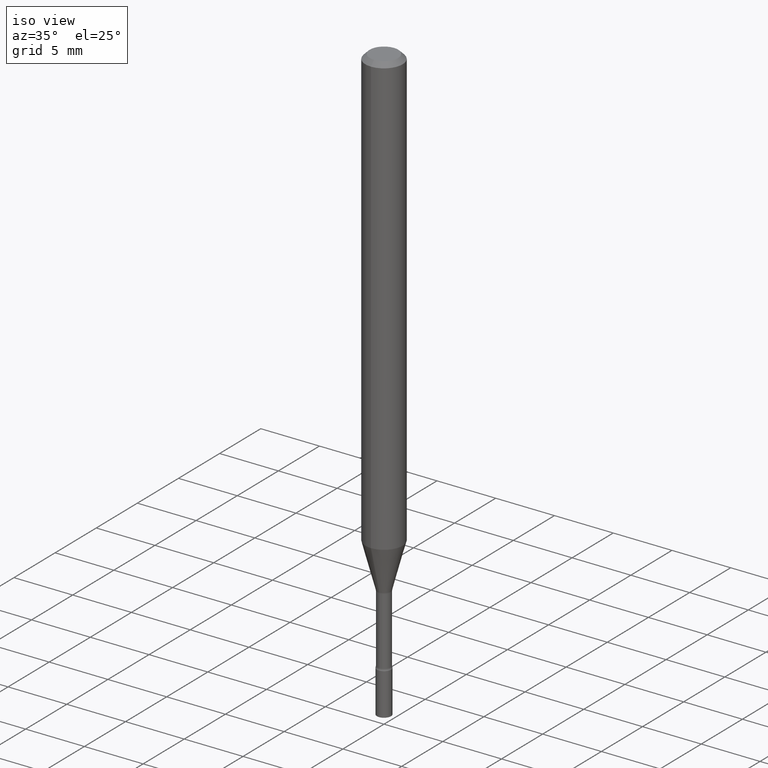
[diagram: clean part render]
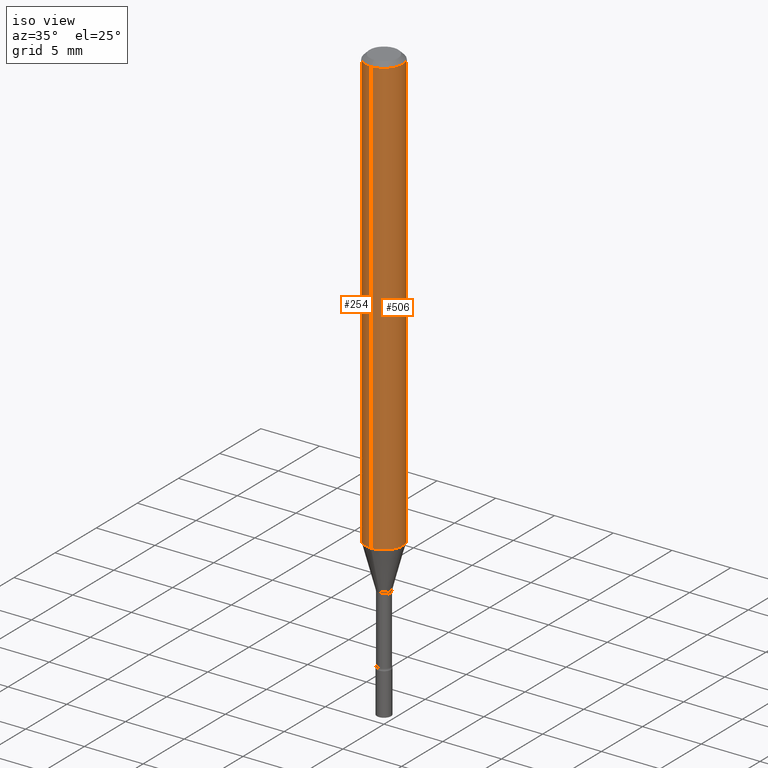
[diagram: same view with one multi-face feature highlighted, each face labeled with its STEP entity id]
A machine part, iso view. The highlighted faces form ONE feature: a constant-radius fillet chain: 2 tangent blend faces with common blend radius 1.5875 mm. The faces share edges in the B-rep.
Their STEP definitions:
[1] entity #506 (Cylinder):
#6 = EDGE_CURVE ( 'NONE', #166, #144, #128, .T. ) ;
#20 = VERTEX_POINT ( 'NONE', #354 ) ;
#25 = VECTOR ( 'NONE', #258, 39.37007874015748143 ) ;
#28 = CARTESIAN_POINT ( 'NONE',  ( 4.440892098500988052E-16, 0.06249999999999993755, -0.01500000000000024751 ) ) ;
#31 = CARTESIAN_POINT ( 'NONE',  ( 4.440892098500625669E-16, 0.06250000000000000000, -2.182194243372866596E-16 ) ) ;
#42 = ORIENTED_EDGE ( 'NONE', *, *, #89, .F. ) ;
#45 = VECTOR ( 'NONE', #459, 39.37007874015748143 ) ;
#75 = EDGE_LOOP ( 'NONE', ( #164, #395, #432, #42 ) ) ;
#89 = EDGE_CURVE ( 'NONE', #179, #20, #109, .T. ) ;
#106 = CIRCLE ( 'NONE', #403, 0.06250000000000000000 ) ;
#109 = LINE ( 'NONE', #379, #45 ) ;
#110 = CARTESIAN_POINT ( 'NONE',  ( 3.602695845204330567E-29, -5.143781497267456685E-15, -1.473225147374217503 ) ) ;
#115 = CIRCLE ( 'NONE', #470, 0.06250000000000000000 ) ;
#128 = LINE ( 'NONE', #31, #25 ) ;
#135 = CARTESIAN_POINT ( 'NONE',  ( 3.668172361460384639E-31, -5.237266184094891392E-17, -0.01500000000000003067 ) ) ;
#138 = CARTESIAN_POINT ( 'NONE',  ( 0.000000000000000000, 0.000000000000000000, 0.000000000000000000 ) ) ;
#142 = DIRECTION ( 'NONE',  ( -2.445448240973584878E-29, 3.491510789396586553E-15, 1.000000000000000000 ) ) ;
#144 = VERTEX_POINT ( 'NONE', #28 ) ;
#164 = ORIENTED_EDGE ( 'NONE', *, *, #198, .T. ) ;
#166 = VERTEX_POINT ( 'NONE', #410 ) ;
#179 = VERTEX_POINT ( 'NONE', #193 ) ;
#189 = DIRECTION ( 'NONE',  ( -6.982962677686265922E-15, -1.000000000000000000, 4.370956789862821150E-15 ) ) ;
#193 = CARTESIAN_POINT ( 'NONE',  ( -4.364351673553557762E-16, -0.06250000000000517641, -1.473225147374217281 ) ) ;
#198 = EDGE_CURVE ( 'NONE', #179, #166, #106, .T. ) ;
#206 = DIRECTION ( 'NONE',  ( -2.445448240973584878E-29, 3.491510789396586553E-15, 1.000000000000000000 ) ) ;
#217 = DIRECTION ( 'NONE',  ( -6.982962677686265922E-15, -1.000000000000000000, 3.491510789396586553E-15 ) ) ;
#258 = DIRECTION ( 'NONE',  ( -2.445448240973584878E-29, 3.491510789396586948E-15, 1.000000000000000000 ) ) ;
#266 = CYLINDRICAL_SURFACE ( 'NONE', #405, 0.06250000000000000000 ) ;
#293 = FACE_OUTER_BOUND ( 'NONE', #75, .T. ) ;
#354 = CARTESIAN_POINT ( 'NONE',  ( -4.364351673553912750E-16, -0.06250000000000005551, -0.01499999999999981209 ) ) ;
#367 = EDGE_CURVE ( 'NONE', #20, #144, #115, .T. ) ;
#379 = CARTESIAN_POINT ( 'NONE',  ( -4.364351673553916201E-16, -0.06250000000000000000, 2.182194243372866596E-16 ) ) ;
#388 = DIRECTION ( 'NONE',  ( -6.982962677686265922E-15, -1.000000000000000000, 3.483106191921935554E-15 ) ) ;
#395 = ORIENTED_EDGE ( 'NONE', *, *, #6, .T. ) ;
#403 = AXIS2_PLACEMENT_3D ( 'NONE', #110, #206, #189 ) ;
#405 = AXIS2_PLACEMENT_3D ( 'NONE', #138, #142, #217 ) ;
#410 = CARTESIAN_POINT ( 'NONE',  ( 4.440892098500984107E-16, 0.06249999999999483746, -1.473225147374217725 ) ) ;
#432 = ORIENTED_EDGE ( 'NONE', *, *, #367, .F. ) ;
#459 = DIRECTION ( 'NONE',  ( -2.445448240973584878E-29, 3.491510789396586948E-15, 1.000000000000000000 ) ) ;
#470 = AXIS2_PLACEMENT_3D ( 'NONE', #135, #498, #388 ) ;
#498 = DIRECTION ( 'NONE',  ( -2.445448240973584878E-29, 3.491510789396586553E-15, 1.000000000000000000 ) ) ;
#506 = ADVANCED_FACE ( 'NONE', ( #293 ), #266, .T. ) ;
[2] entity #254 (Cylinder):
#2 = AXIS2_PLACEMENT_3D ( 'NONE', #41, #248, #3 ) ;
#3 = DIRECTION ( 'NONE',  ( -6.982962677686265922E-15, -1.000000000000000000, 3.491510789396586553E-15 ) ) ;
#6 = EDGE_CURVE ( 'NONE', #166, #144, #128, .T. ) ;
#20 = VERTEX_POINT ( 'NONE', #354 ) ;
#25 = VECTOR ( 'NONE', #258, 39.37007874015748143 ) ;
#28 = CARTESIAN_POINT ( 'NONE',  ( 4.440892098500988052E-16, 0.06249999999999993755, -0.01500000000000024751 ) ) ;
#31 = CARTESIAN_POINT ( 'NONE',  ( 4.440892098500625669E-16, 0.06250000000000000000, -2.182194243372866596E-16 ) ) ;
#41 = CARTESIAN_POINT ( 'NONE',  ( 0.000000000000000000, 0.000000000000000000, 0.000000000000000000 ) ) ;
#45 = VECTOR ( 'NONE', #459, 39.37007874015748143 ) ;
#50 = EDGE_LOOP ( 'NONE', ( #185, #276, #265, #88 ) ) ;
#74 = CARTESIAN_POINT ( 'NONE',  ( 3.668172361460384639E-31, -5.237266184094891392E-17, -0.01500000000000003067 ) ) ;
#83 = CYLINDRICAL_SURFACE ( 'NONE', #2, 0.06250000000000000000 ) ;
#88 = ORIENTED_EDGE ( 'NONE', *, *, #351, .F. ) ;
#89 = EDGE_CURVE ( 'NONE', #179, #20, #109, .T. ) ;
#96 = DIRECTION ( 'NONE',  ( -2.445448240973584878E-29, 3.491510789396586553E-15, 1.000000000000000000 ) ) ;
#97 = EDGE_CURVE ( 'NONE', #166, #179, #415, .T. ) ;
#109 = LINE ( 'NONE', #379, #45 ) ;
#128 = LINE ( 'NONE', #31, #25 ) ;
#144 = VERTEX_POINT ( 'NONE', #28 ) ;
#161 = FACE_OUTER_BOUND ( 'NONE', #50, .T. ) ;
#166 = VERTEX_POINT ( 'NONE', #410 ) ;
#179 = VERTEX_POINT ( 'NONE', #193 ) ;
#185 = ORIENTED_EDGE ( 'NONE', *, *, #6, .F. ) ;
#193 = CARTESIAN_POINT ( 'NONE',  ( -4.364351673553557762E-16, -0.06250000000000517641, -1.473225147374217281 ) ) ;
#205 = AXIS2_PLACEMENT_3D ( 'NONE', #74, #440, #279 ) ;
#224 = DIRECTION ( 'NONE',  ( -6.982962677686265922E-15, -1.000000000000000000, 4.370956789862821150E-15 ) ) ;
#248 = DIRECTION ( 'NONE',  ( -2.445448240973584878E-29, 3.491510789396586553E-15, 1.000000000000000000 ) ) ;
#254 = ADVANCED_FACE ( 'NONE', ( #161 ), #83, .T. ) ;
#258 = DIRECTION ( 'NONE',  ( -2.445448240973584878E-29, 3.491510789396586948E-15, 1.000000000000000000 ) ) ;
#265 = ORIENTED_EDGE ( 'NONE', *, *, #89, .T. ) ;
#276 = ORIENTED_EDGE ( 'NONE', *, *, #97, .T. ) ;
#279 = DIRECTION ( 'NONE',  ( -6.982962677686265922E-15, -1.000000000000000000, 3.483106191921935554E-15 ) ) ;
#351 = EDGE_CURVE ( 'NONE', #144, #20, #456, .T. ) ;
#354 = CARTESIAN_POINT ( 'NONE',  ( -4.364351673553912750E-16, -0.06250000000000005551, -0.01499999999999981209 ) ) ;
#373 = AXIS2_PLACEMENT_3D ( 'NONE', #437, #96, #224 ) ;
#379 = CARTESIAN_POINT ( 'NONE',  ( -4.364351673553916201E-16, -0.06250000000000000000, 2.182194243372866596E-16 ) ) ;
#410 = CARTESIAN_POINT ( 'NONE',  ( 4.440892098500984107E-16, 0.06249999999999483746, -1.473225147374217725 ) ) ;
#415 = CIRCLE ( 'NONE', #373, 0.06250000000000000000 ) ;
#437 = CARTESIAN_POINT ( 'NONE',  ( 3.602695845204330567E-29, -5.143781497267456685E-15, -1.473225147374217503 ) ) ;
#440 = DIRECTION ( 'NONE',  ( -2.445448240973584878E-29, 3.491510789396586553E-15, 1.000000000000000000 ) ) ;
#456 = CIRCLE ( 'NONE', #205, 0.06250000000000000000 ) ;
#459 = DIRECTION ( 'NONE',  ( -2.445448240973584878E-29, 3.491510789396586948E-15, 1.000000000000000000 ) ) ;